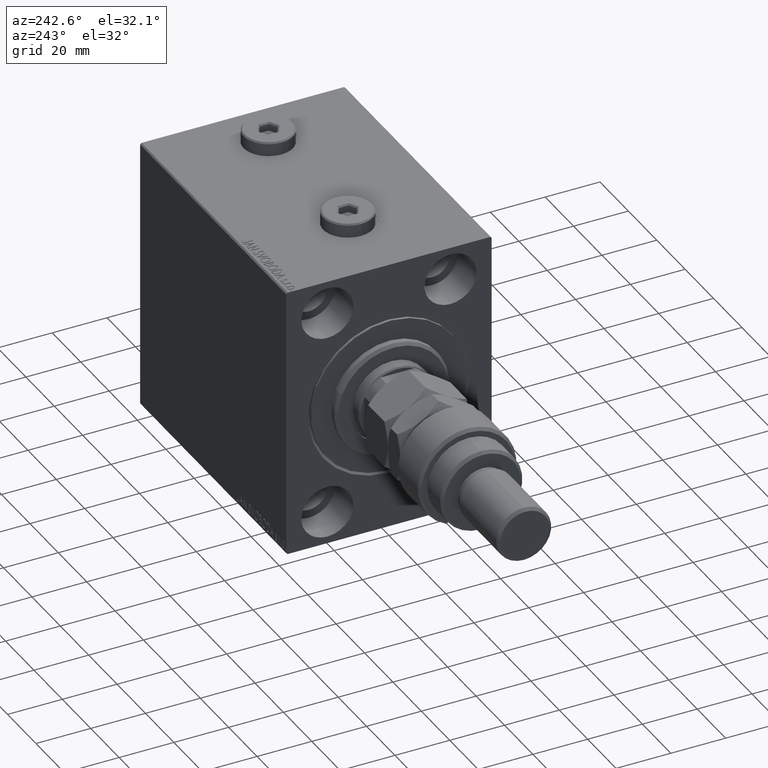
[diagram: clean part render]
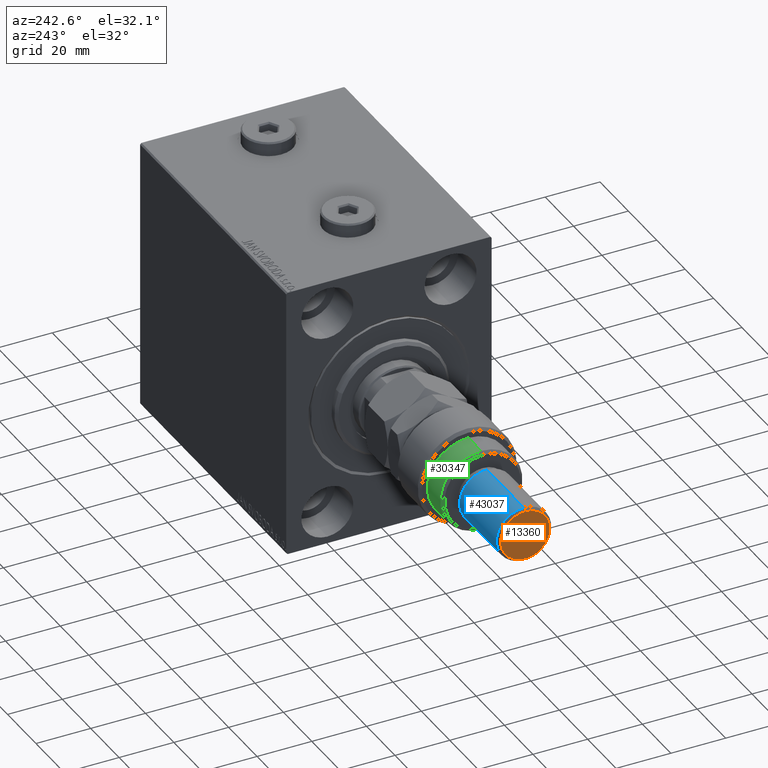
[diagram: same view with three faces highlighted in distinct colors, each labeled with its STEP entity id]
A machine part, auxiliary view with three faces highlighted in distinct colors.
Their STEP definitions:

[orange] entity #13360 — the highlighted planar face has unit normal (-1, 0, 0).
#3445 = CARTESIAN_POINT ( 'NONE',  ( 8.999999999999987566, 1.163414459189984894E-15, 56.00000000000000711 ) ) ;
#5880 = DIRECTION ( 'NONE',  ( 0.000000000000000000, 0.000000000000000000, 1.000000000000000000 ) ) ;
#11619 = VERTEX_POINT ( 'NONE', #3445 ) ;
#13360 = ADVANCED_FACE ( 'NONE', ( #16230 ), #34735, .T. ) ;
#13847 = AXIS2_PLACEMENT_3D ( 'NONE', #45697, #31079, #45942 ) ;
#14570 = CARTESIAN_POINT ( 'NONE',  ( 0.000000000000000000, 0.000000000000000000, 56.00000000000000711 ) ) ;
#15766 = CIRCLE ( 'NONE', #32858, 8.999999999999987566 ) ;
#16230 = FACE_OUTER_BOUND ( 'NONE', #20651, .T. ) ;
#16821 = ORIENTED_EDGE ( 'NONE', *, *, #28386, .T. ) ;
#18090 = ORIENTED_EDGE ( 'NONE', *, *, #45980, .T. ) ;
#18907 = CIRCLE ( 'NONE', #35238, 8.999999999999987566 ) ;
#20651 = EDGE_LOOP ( 'NONE', ( #16821, #18090 ) ) ;
#28386 = EDGE_CURVE ( 'NONE', #36080, #11619, #15766, .T. ) ;
#28746 = CARTESIAN_POINT ( 'NONE',  ( 0.000000000000000000, 0.000000000000000000, 56.00000000000000711 ) ) ;
#31062 = CARTESIAN_POINT ( 'NONE',  ( -8.999999999999987566, 0.000000000000000000, 56.00000000000000711 ) ) ;
#31079 = DIRECTION ( 'NONE',  ( 0.000000000000000000, 0.000000000000000000, 1.000000000000000000 ) ) ;
#32170 = DIRECTION ( 'NONE',  ( 1.000000000000000000, 0.000000000000000000, 0.000000000000000000 ) ) ;
#32858 = AXIS2_PLACEMENT_3D ( 'NONE', #28746, #5880, #32170 ) ;
#33323 = DIRECTION ( 'NONE',  ( 1.000000000000000000, 0.000000000000000000, 0.000000000000000000 ) ) ;
#34042 = DIRECTION ( 'NONE',  ( 0.000000000000000000, 0.000000000000000000, 1.000000000000000000 ) ) ;
#34735 = PLANE ( 'NONE',  #13847 ) ;
#35238 = AXIS2_PLACEMENT_3D ( 'NONE', #14570, #34042, #33323 ) ;
#36080 = VERTEX_POINT ( 'NONE', #31062 ) ;
#45697 = CARTESIAN_POINT ( 'NONE',  ( 0.000000000000000000, 0.000000000000000000, 56.00000000000000711 ) ) ;
#45942 = DIRECTION ( 'NONE',  ( 1.000000000000000000, 0.000000000000000000, -0.000000000000000000 ) ) ;
#45980 = EDGE_CURVE ( 'NONE', #11619, #36080, #18907, .T. ) ;

[blue] entity #43037 — the highlighted cylindrical surface (edge-blend (fillet) strip) has radius 10 mm, axis along (1, -0, -0).
#715 = EDGE_CURVE ( 'NONE', #44956, #17407, #45396, .T. ) ;
#833 = DIRECTION ( 'NONE',  ( -0.000000000000000000, -0.000000000000000000, -1.000000000000000000 ) ) ;
#1073 = AXIS2_PLACEMENT_3D ( 'NONE', #30025, #33682, #37327 ) ;
#1781 = LINE ( 'NONE', #34665, #17086 ) ;
#2155 = CARTESIAN_POINT ( 'NONE',  ( 10.00000000000000000, 1.224646799147353256E-15, 29.00000000000000711 ) ) ;
#8424 = VERTEX_POINT ( 'NONE', #45890 ) ;
#8544 = DIRECTION ( 'NONE',  ( -0.000000000000000000, -0.000000000000000000, -1.000000000000000000 ) ) ;
#8713 = AXIS2_PLACEMENT_3D ( 'NONE', #27058, #8544, #12455 ) ;
#9566 = LINE ( 'NONE', #17349, #41963 ) ;
#11907 = CARTESIAN_POINT ( 'NONE',  ( 0.000000000000000000, 0.000000000000000000, 54.99999999999998579 ) ) ;
#12212 = CYLINDRICAL_SURFACE ( 'NONE', #8713, 10.00000000000000000 ) ;
#12455 = DIRECTION ( 'NONE',  ( -1.000000000000000000, 0.000000000000000000, 0.000000000000000000 ) ) ;
#14868 = VERTEX_POINT ( 'NONE', #38187 ) ;
#15649 = EDGE_CURVE ( 'NONE', #14868, #8424, #39594, .T. ) ;
#15799 = DIRECTION ( 'NONE',  ( 0.000000000000000000, 0.000000000000000000, -1.000000000000000000 ) ) ;
#17086 = VECTOR ( 'NONE', #833, 1000.000000000000000 ) ;
#17349 = CARTESIAN_POINT ( 'NONE',  ( 10.00000000000000000, 1.224646799147353256E-15, 56.00000000000000711 ) ) ;
#17407 = VERTEX_POINT ( 'NONE', #17861 ) ;
#17861 = CARTESIAN_POINT ( 'NONE',  ( -10.00000000000000000, 0.000000000000000000, 29.00000000000000711 ) ) ;
#20480 = FACE_OUTER_BOUND ( 'NONE', #37489, .T. ) ;
#21121 = EDGE_CURVE ( 'NONE', #8424, #44956, #9566, .T. ) ;
#21720 = DIRECTION ( 'NONE',  ( 1.000000000000000000, 0.000000000000000000, 0.000000000000000000 ) ) ;
#22434 = ORIENTED_EDGE ( 'NONE', *, *, #15649, .T. ) ;
#25114 = ORIENTED_EDGE ( 'NONE', *, *, #21121, .T. ) ;
#26885 = ORIENTED_EDGE ( 'NONE', *, *, #715, .T. ) ;
#27058 = CARTESIAN_POINT ( 'NONE',  ( 0.000000000000000000, 0.000000000000000000, 56.00000000000000711 ) ) ;
#30025 = CARTESIAN_POINT ( 'NONE',  ( 0.000000000000000000, 0.000000000000000000, 29.00000000000000711 ) ) ;
#31727 = DIRECTION ( 'NONE',  ( -0.000000000000000000, -0.000000000000000000, -1.000000000000000000 ) ) ;
#33682 = DIRECTION ( 'NONE',  ( -0.000000000000000000, -0.000000000000000000, 1.000000000000000000 ) ) ;
#34665 = CARTESIAN_POINT ( 'NONE',  ( -10.00000000000000000, 0.000000000000000000, 56.00000000000000711 ) ) ;
#37292 = EDGE_CURVE ( 'NONE', #14868, #17407, #1781, .T. ) ;
#37327 = DIRECTION ( 'NONE',  ( 1.000000000000000000, 0.000000000000000000, 0.000000000000000000 ) ) ;
#37489 = EDGE_LOOP ( 'NONE', ( #22434, #25114, #26885, #47773 ) ) ;
#38187 = CARTESIAN_POINT ( 'NONE',  ( -10.00000000000000000, 0.000000000000000000, 54.99999999999998579 ) ) ;
#39594 = CIRCLE ( 'NONE', #41129, 10.00000000000000000 ) ;
#41129 = AXIS2_PLACEMENT_3D ( 'NONE', #11907, #15799, #21720 ) ;
#41963 = VECTOR ( 'NONE', #31727, 1000.000000000000000 ) ;
#43037 = ADVANCED_FACE ( 'NONE', ( #20480 ), #12212, .T. ) ;
#44956 = VERTEX_POINT ( 'NONE', #2155 ) ;
#45396 = CIRCLE ( 'NONE', #1073, 10.00000000000000000 ) ;
#45890 = CARTESIAN_POINT ( 'NONE',  ( 10.00000000000000000, 1.224646799147353256E-15, 54.99999999999998579 ) ) ;
#47773 = ORIENTED_EDGE ( 'NONE', *, *, #37292, .F. ) ;

[green] entity #30347 — the highlighted cylindrical surface (partial cylindrical patch) has radius 15 mm, axis along (1, -0, -0).
#193 = CARTESIAN_POINT ( 'NONE',  ( 15.00000000000000000, 1.836970198721029589E-15, 24.99999999999997868 ) ) ;
#1055 = AXIS2_PLACEMENT_3D ( 'NONE', #12501, #43327, #46755 ) ;
#2752 = DIRECTION ( 'NONE',  ( -1.000000000000000000, 0.000000000000000000, 0.000000000000000000 ) ) ;
#3089 = AXIS2_PLACEMENT_3D ( 'NONE', #45340, #27071, #45580 ) ;
#3419 = DIRECTION ( 'NONE',  ( -0.000000000000000000, -0.000000000000000000, -1.000000000000000000 ) ) ;
#3598 = AXIS2_PLACEMENT_3D ( 'NONE', #43415, #43661, #2752 ) ;
#3697 = VERTEX_POINT ( 'NONE', #15086 ) ;
#4319 = ORIENTED_EDGE ( 'NONE', *, *, #8528, .F. ) ;
#8528 = EDGE_CURVE ( 'NONE', #11597, #43108, #15284, .T. ) ;
#9388 = EDGE_CURVE ( 'NONE', #32578, #3697, #39647, .T. ) ;
#9556 = AXIS2_PLACEMENT_3D ( 'NONE', #46988, #47464, #36022 ) ;
#10895 = LINE ( 'NONE', #47439, #47476 ) ;
#11597 = VERTEX_POINT ( 'NONE', #26092 ) ;
#11870 = ORIENTED_EDGE ( 'NONE', *, *, #38819, .T. ) ;
#12185 = ORIENTED_EDGE ( 'NONE', *, *, #9388, .T. ) ;
#12501 = CARTESIAN_POINT ( 'NONE',  ( 0.000000000000000000, 0.000000000000000000, 26.00000000000000355 ) ) ;
#14869 = CARTESIAN_POINT ( 'NONE',  ( -15.00000000000000000, 0.000000000000000000, 26.00000000000000355 ) ) ;
#15086 = CARTESIAN_POINT ( 'NONE',  ( 15.00000000000000000, 1.836970198721029589E-15, 16.00000000000000000 ) ) ;
#15284 = CIRCLE ( 'NONE', #3598, 15.00000000000000000 ) ;
#17257 = DIRECTION ( 'NONE',  ( -0.000000000000000000, -0.000000000000000000, -1.000000000000000000 ) ) ;
#21392 = DIRECTION ( 'NONE',  ( 0.000000000000000000, 0.000000000000000000, 1.000000000000000000 ) ) ;
#22255 = EDGE_CURVE ( 'NONE', #30942, #32578, #35779, .T. ) ;
#22525 = VECTOR ( 'NONE', #3419, 1000.000000000000000 ) ;
#22824 = CIRCLE ( 'NONE', #9556, 15.00000000000000000 ) ;
#24862 = LINE ( 'NONE', #14869, #22525 ) ;
#26092 = CARTESIAN_POINT ( 'NONE',  ( -15.00000000000000000, 0.000000000000000000, 17.50000000000000000 ) ) ;
#26203 = VECTOR ( 'NONE', #17257, 1000.000000000000000 ) ;
#27071 = DIRECTION ( 'NONE',  ( 0.000000000000000000, 0.000000000000000000, -1.000000000000000000 ) ) ;
#28945 = CYLINDRICAL_SURFACE ( 'NONE', #1055, 15.00000000000000000 ) ;
#29169 = CARTESIAN_POINT ( 'NONE',  ( 15.00000000000000000, 1.836970198721029589E-15, 26.00000000000000355 ) ) ;
#29183 = EDGE_CURVE ( 'NONE', #3697, #33667, #22824, .T. ) ;
#29195 = EDGE_LOOP ( 'NONE', ( #45402, #12185, #29979, #11870, #4319, #39796 ) ) ;
#29979 = ORIENTED_EDGE ( 'NONE', *, *, #29183, .T. ) ;
#30347 = ADVANCED_FACE ( 'NONE', ( #32603 ), #28945, .T. ) ;
#30942 = VERTEX_POINT ( 'NONE', #35394 ) ;
#32578 = VERTEX_POINT ( 'NONE', #193 ) ;
#32603 = FACE_OUTER_BOUND ( 'NONE', #29195, .T. ) ;
#32970 = EDGE_CURVE ( 'NONE', #30942, #11597, #24862, .T. ) ;
#33667 = VERTEX_POINT ( 'NONE', #36656 ) ;
#35394 = CARTESIAN_POINT ( 'NONE',  ( -15.00000000000000000, 0.000000000000000000, 24.99999999999997868 ) ) ;
#35779 = CIRCLE ( 'NONE', #3089, 15.00000000000000000 ) ;
#35796 = CARTESIAN_POINT ( 'NONE',  ( -12.99038105676658006, 7.500000000000000000, 17.50000000000000000 ) ) ;
#36022 = DIRECTION ( 'NONE',  ( 1.000000000000000000, 0.000000000000000000, 0.000000000000000000 ) ) ;
#36656 = CARTESIAN_POINT ( 'NONE',  ( -12.99038105676658006, 7.500000000000000000, 16.00000000000000000 ) ) ;
#38819 = EDGE_CURVE ( 'NONE', #33667, #43108, #10895, .T. ) ;
#39647 = LINE ( 'NONE', #29169, #26203 ) ;
#39796 = ORIENTED_EDGE ( 'NONE', *, *, #32970, .F. ) ;
#43108 = VERTEX_POINT ( 'NONE', #35796 ) ;
#43327 = DIRECTION ( 'NONE',  ( -0.000000000000000000, -0.000000000000000000, -1.000000000000000000 ) ) ;
#43415 = CARTESIAN_POINT ( 'NONE',  ( 0.000000000000000000, 0.000000000000000000, 17.50000000000000000 ) ) ;
#43661 = DIRECTION ( 'NONE',  ( 0.000000000000000000, 0.000000000000000000, -1.000000000000000000 ) ) ;
#45340 = CARTESIAN_POINT ( 'NONE',  ( 0.000000000000000000, 0.000000000000000000, 24.99999999999997868 ) ) ;
#45402 = ORIENTED_EDGE ( 'NONE', *, *, #22255, .T. ) ;
#45580 = DIRECTION ( 'NONE',  ( 1.000000000000000000, 0.000000000000000000, 0.000000000000000000 ) ) ;
#46755 = DIRECTION ( 'NONE',  ( -1.000000000000000000, 0.000000000000000000, 0.000000000000000000 ) ) ;
#46988 = CARTESIAN_POINT ( 'NONE',  ( 0.000000000000000000, 0.000000000000000000, 16.00000000000000000 ) ) ;
#47439 = CARTESIAN_POINT ( 'NONE',  ( -12.99038105676658006, 7.500000000000000000, 26.00000000000000355 ) ) ;
#47464 = DIRECTION ( 'NONE',  ( 0.000000000000000000, 0.000000000000000000, 1.000000000000000000 ) ) ;
#47476 = VECTOR ( 'NONE', #21392, 1000.000000000000000 ) ;